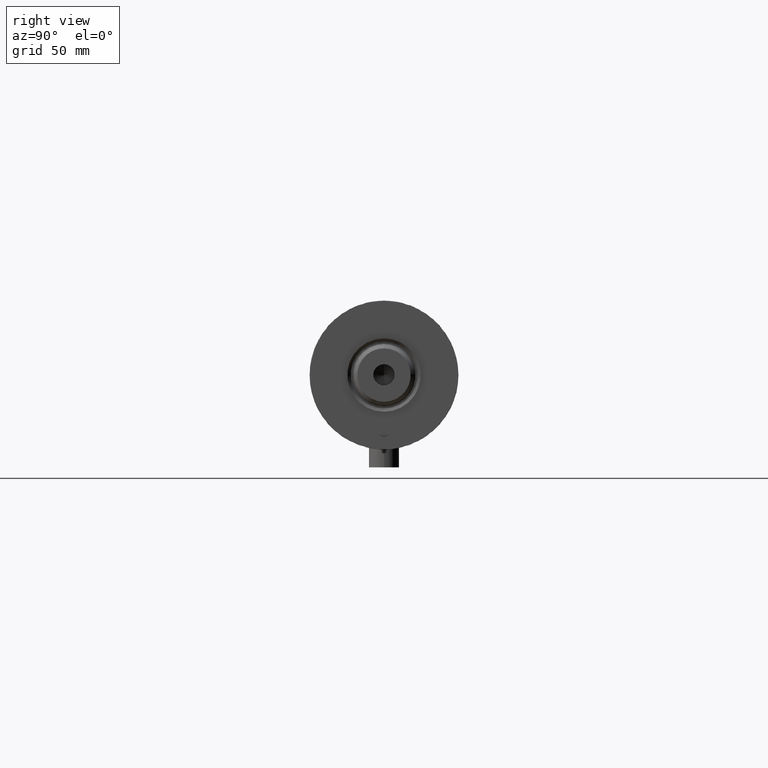
[diagram: clean part render]
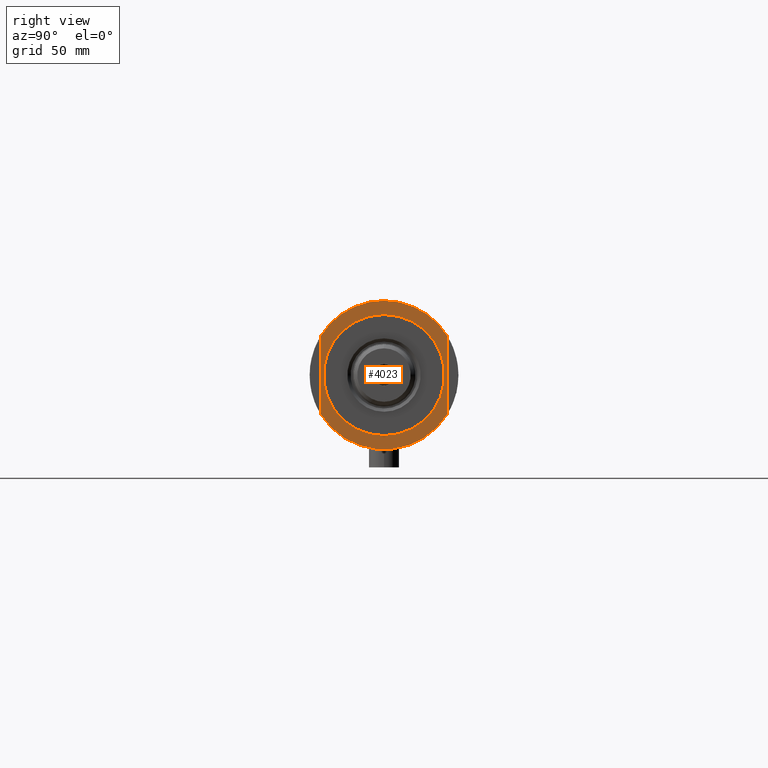
[diagram: same view with one face highlighted and labeled with its STEP entity id]
A machine part, right view. The second image highlights one B-rep face of the part: STEP entity #4023.
In plain terms, the highlighted planar face has unit normal (1, 0, -0).
Its self-contained STEP definition (entity closure, byte-faithful):
#266 = ORIENTED_EDGE ( 'NONE', *, *, #2506, .F. ) ;
#405 = CIRCLE ( 'NONE', #912, 24.00000000000000000 ) ;
#430 = CARTESIAN_POINT ( 'NONE',  ( -15.66045976336583401, -25.00000000000000000, 21.00000000000000000 ) ) ;
#481 = DIRECTION ( 'NONE',  ( 0.000000000000000000, 0.000000000000000000, 1.000000000000000000 ) ) ;
#557 = CARTESIAN_POINT ( 'NONE',  ( 15.66045976336583045, -25.00000000000000000, 21.00000000000000355 ) ) ;
#610 = EDGE_CURVE ( 'NONE', #3220, #2669, #815, .T. ) ;
#640 = DIRECTION ( 'NONE',  ( 1.000000000000000000, 0.000000000000000000, 0.000000000000000000 ) ) ;
#645 = ORIENTED_EDGE ( 'NONE', *, *, #3452, .T. ) ;
#652 = DIRECTION ( 'NONE',  ( -0.000000000000000000, -0.000000000000000000, -1.000000000000000000 ) ) ;
#671 = DIRECTION ( 'NONE',  ( 1.000000000000000000, 0.000000000000000000, 0.000000000000000000 ) ) ;
#815 = CIRCLE ( 'NONE', #1026, 29.50000000000000355 ) ;
#858 = DIRECTION ( 'NONE',  ( 1.000000000000000000, 0.000000000000000000, 0.000000000000000000 ) ) ;
#864 = FACE_OUTER_BOUND ( 'NONE', #2808, .T. ) ;
#912 = AXIS2_PLACEMENT_3D ( 'NONE', #1072, #652, #671 ) ;
#917 = VERTEX_POINT ( 'NONE', #3677 ) ;
#1026 = AXIS2_PLACEMENT_3D ( 'NONE', #3029, #2020, #640 ) ;
#1041 = CIRCLE ( 'NONE', #3284, 29.50000000000000355 ) ;
#1053 = AXIS2_PLACEMENT_3D ( 'NONE', #2188, #481, #1129 ) ;
#1072 = CARTESIAN_POINT ( 'NONE',  ( 0.000000000000000000, 0.000000000000000000, 21.00000000000000000 ) ) ;
#1129 = DIRECTION ( 'NONE',  ( 1.000000000000000000, 0.000000000000000000, -0.000000000000000000 ) ) ;
#1204 = FACE_BOUND ( 'NONE', #4315, .T. ) ;
#1230 = CARTESIAN_POINT ( 'NONE',  ( 0.000000000000000000, 0.000000000000000000, 21.00000000000000000 ) ) ;
#1263 = AXIS2_PLACEMENT_3D ( 'NONE', #2246, #2588, #858 ) ;
#1386 = CARTESIAN_POINT ( 'NONE',  ( -15.66045976336583045, -24.99999999999999645, 20.99999999999999645 ) ) ;
#1406 = EDGE_CURVE ( 'NONE', #917, #1482, #4129, .T. ) ;
#1482 = VERTEX_POINT ( 'NONE', #1922 ) ;
#1501 = CARTESIAN_POINT ( 'NONE',  ( -15.66045976336583045, 24.99999999999999645, 21.00000000000000355 ) ) ;
#1518 = DIRECTION ( 'NONE',  ( 1.000000000000000000, 0.000000000000000000, 0.000000000000000000 ) ) ;
#1573 = DIRECTION ( 'NONE',  ( 0.000000000000000000, 0.000000000000000000, 1.000000000000000000 ) ) ;
#1592 = DIRECTION ( 'NONE',  ( 1.000000000000000000, 0.000000000000000000, 0.000000000000000000 ) ) ;
#1810 = DIRECTION ( 'NONE',  ( -1.000000000000000000, -0.000000000000000000, -0.000000000000000000 ) ) ;
#1922 = CARTESIAN_POINT ( 'NONE',  ( -24.00000000000000000, 2.939152317953647894E-15, 21.00000000000000000 ) ) ;
#2020 = DIRECTION ( 'NONE',  ( 0.000000000000000000, 0.000000000000000000, 1.000000000000000000 ) ) ;
#2124 = AXIS2_PLACEMENT_3D ( 'NONE', #1230, #3297, #1518 ) ;
#2188 = CARTESIAN_POINT ( 'NONE',  ( 0.000000000000000000, 0.000000000000000000, 21.00000000000000000 ) ) ;
#2199 = CIRCLE ( 'NONE', #2124, 29.50000000000000355 ) ;
#2237 = ORIENTED_EDGE ( 'NONE', *, *, #610, .T. ) ;
#2246 = CARTESIAN_POINT ( 'NONE',  ( 0.000000000000000000, 0.000000000000000000, 21.00000000000000000 ) ) ;
#2258 = VERTEX_POINT ( 'NONE', #2696 ) ;
#2340 = VECTOR ( 'NONE', #3931, 1000.000000000000000 ) ;
#2506 = EDGE_CURVE ( 'NONE', #3220, #2258, #4330, .T. ) ;
#2588 = DIRECTION ( 'NONE',  ( -0.000000000000000000, -0.000000000000000000, -1.000000000000000000 ) ) ;
#2620 = CARTESIAN_POINT ( 'NONE',  ( -15.66045976336583401, 25.00000000000000000, 21.00000000000000000 ) ) ;
#2669 = VERTEX_POINT ( 'NONE', #3808 ) ;
#2696 = CARTESIAN_POINT ( 'NONE',  ( 15.66045976336583045, 24.99999999999999645, 20.99999999999999645 ) ) ;
#2804 = EDGE_CURVE ( 'NONE', #3183, #2258, #2199, .T. ) ;
#2808 = EDGE_LOOP ( 'NONE', ( #4405, #3867, #266, #2237, #2959 ) ) ;
#2852 = VECTOR ( 'NONE', #1810, 1000.000000000000000 ) ;
#2959 = ORIENTED_EDGE ( 'NONE', *, *, #3112, .T. ) ;
#3024 = VERTEX_POINT ( 'NONE', #1386 ) ;
#3029 = CARTESIAN_POINT ( 'NONE',  ( 0.000000000000000000, 0.000000000000000000, 21.00000000000000000 ) ) ;
#3112 = EDGE_CURVE ( 'NONE', #2669, #3024, #1041, .T. ) ;
#3183 = VERTEX_POINT ( 'NONE', #557 ) ;
#3220 = VERTEX_POINT ( 'NONE', #1501 ) ;
#3284 = AXIS2_PLACEMENT_3D ( 'NONE', #4332, #1573, #1592 ) ;
#3297 = DIRECTION ( 'NONE',  ( 0.000000000000000000, 0.000000000000000000, 1.000000000000000000 ) ) ;
#3452 = EDGE_CURVE ( 'NONE', #1482, #917, #405, .T. ) ;
#3677 = CARTESIAN_POINT ( 'NONE',  ( 24.00000000000000000, 0.000000000000000000, 21.00000000000000000 ) ) ;
#3808 = CARTESIAN_POINT ( 'NONE',  ( -29.50000000000000355, 0.000000000000000000, 21.00000000000000000 ) ) ;
#3824 = LINE ( 'NONE', #430, #2852 ) ;
#3867 = ORIENTED_EDGE ( 'NONE', *, *, #2804, .T. ) ;
#3931 = DIRECTION ( 'NONE',  ( 1.000000000000000000, 0.000000000000000000, 0.000000000000000000 ) ) ;
#3977 = EDGE_CURVE ( 'NONE', #3183, #3024, #3824, .T. ) ;
#4023 = ADVANCED_FACE ( 'NONE', ( #1204, #864 ), #4212, .T. ) ;
#4129 = CIRCLE ( 'NONE', #1263, 24.00000000000000000 ) ;
#4196 = ORIENTED_EDGE ( 'NONE', *, *, #1406, .T. ) ;
#4212 = PLANE ( 'NONE',  #1053 ) ;
#4315 = EDGE_LOOP ( 'NONE', ( #4196, #645 ) ) ;
#4330 = LINE ( 'NONE', #2620, #2340 ) ;
#4332 = CARTESIAN_POINT ( 'NONE',  ( 0.000000000000000000, 0.000000000000000000, 21.00000000000000000 ) ) ;
#4405 = ORIENTED_EDGE ( 'NONE', *, *, #3977, .F. ) ;